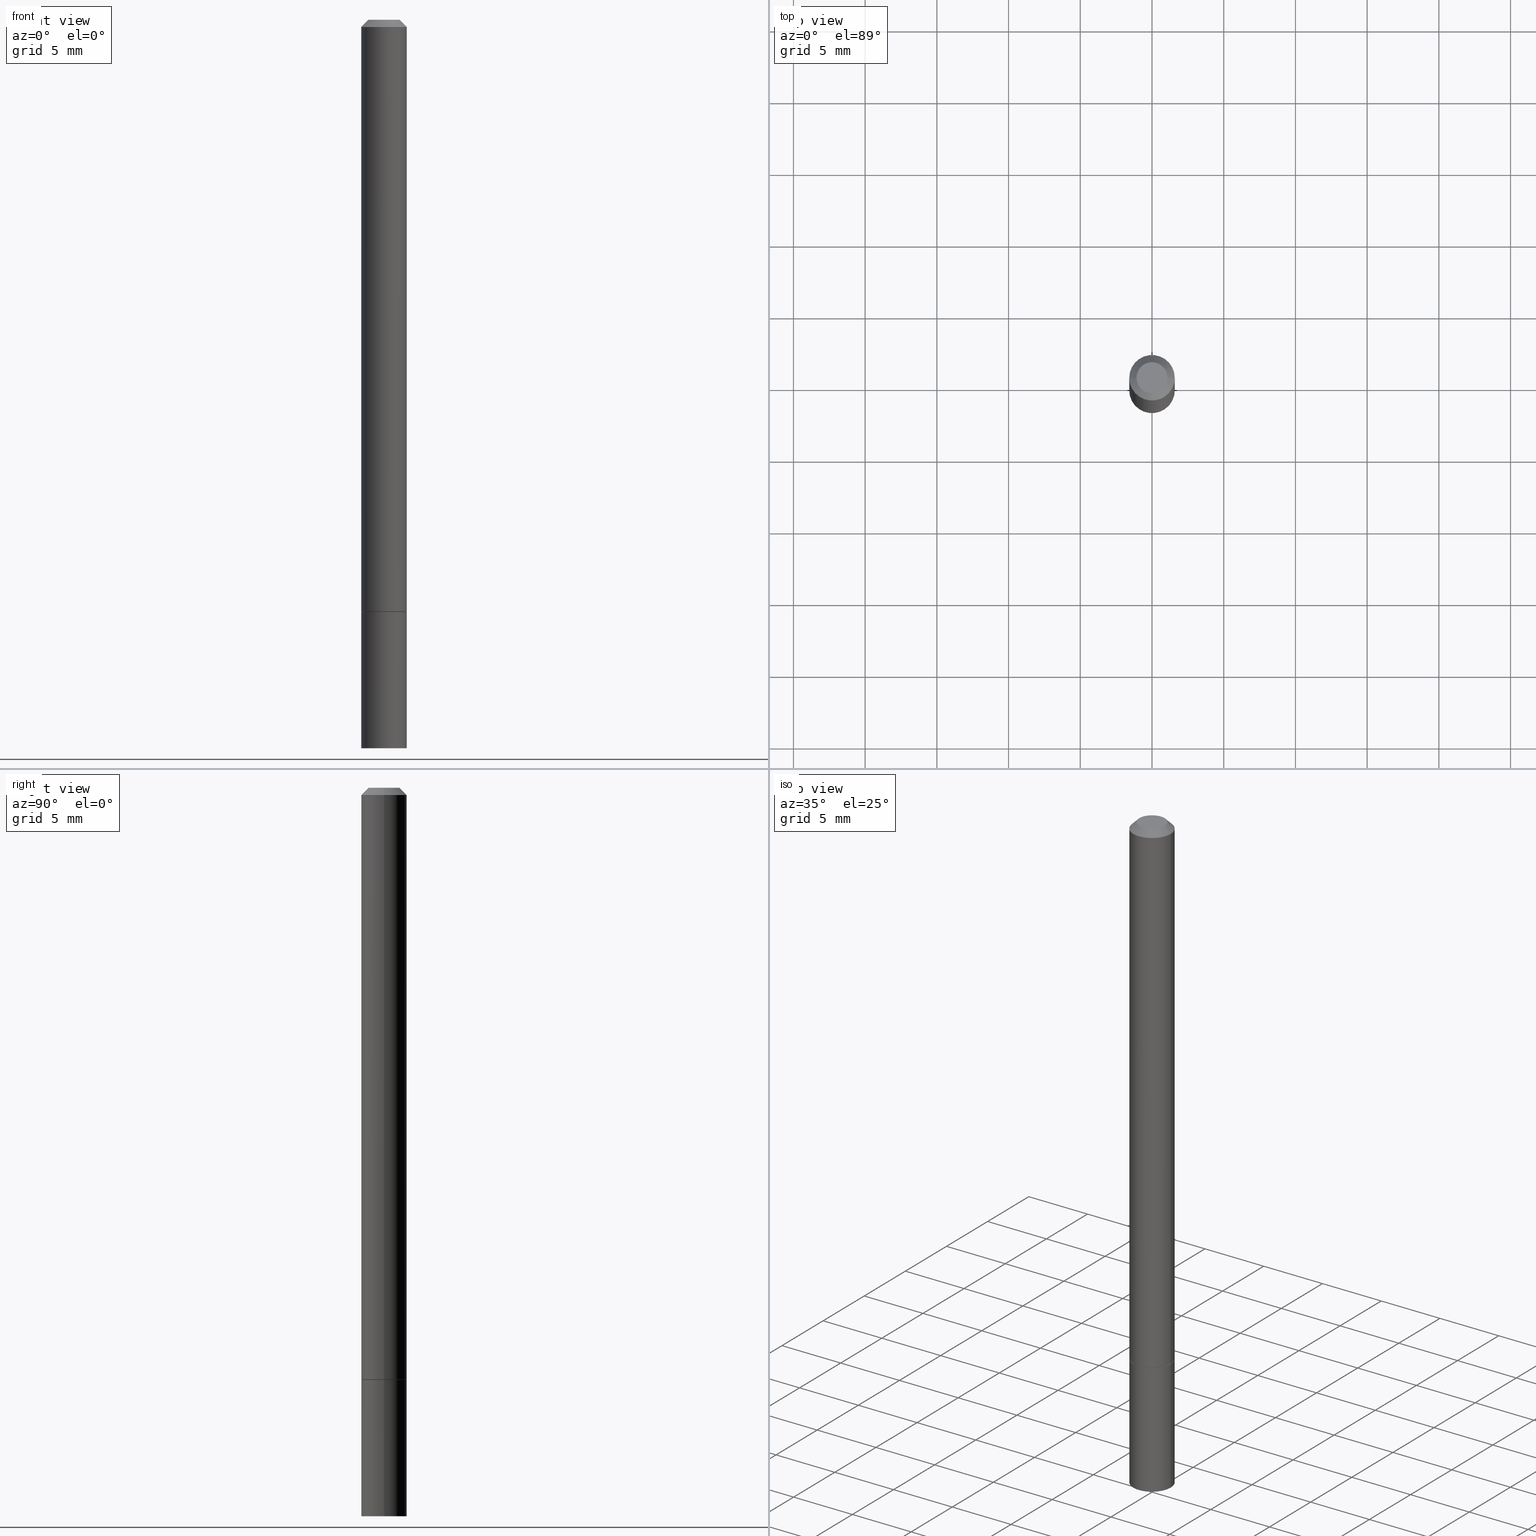
[diagram: canonical four-view strip — front | top / right | iso, engineering-drawing reading convention]
A machine part, canonical four-view strip (front | top / right | iso — engineering-drawing reading convention). The complete STEP part file that produces these views, byte-faithful:
ISO-10303-21;
HEADER;
FILE_DESCRIPTION (( 'STEP AP203' ),
    '1' );
FILE_NAME ('37397.STEP',
    '2024-02-27T21:27:54',
    ( '' ),
    ( '' ),
    'SwSTEP 2.0',
    'SolidWorks 2023',
    '' );
FILE_SCHEMA (( 'CONFIG_CONTROL_DESIGN' ));
ENDSEC;

DATA;
#1 = DATE_AND_TIME ( #290, #64 ) ;
#2 = CARTESIAN_POINT ( 'NONE',  ( 0.06150000000000001299, -6.103109380297817079E-15, -1.625000000000000000 ) ) ;
#3 =( NAMED_UNIT ( * ) PLANE_ANGLE_UNIT ( ) SI_UNIT ( $, .RADIAN. ) );
#4 = EDGE_CURVE ( 'NONE', #291, #338, #232, .T. ) ;
#5 = EDGE_LOOP ( 'NONE', ( #328, #31, #238, #210 ) ) ;
#6 = ORIENTED_EDGE ( 'NONE', *, *, #14, .T. ) ;
#7 = CARTESIAN_POINT ( 'NONE',  ( 3.973886810050846970E-29, -5.673657175620112213E-15, -1.625000000000000000 ) ) ;
#8 = CARTESIAN_POINT ( 'NONE',  ( 3.971441341244661927E-29, -5.670165694281268417E-15, -1.623999999999999888 ) ) ;
#9 = DIRECTION ( 'NONE',  ( -2.445468806185136597E-29, 3.491481338843145583E-15, 1.000000000000000000 ) ) ;
#10 = VECTOR ( 'NONE', #48, 39.37007874015748143 ) ;
#11 = EDGE_CURVE ( 'NONE', #184, #65, #170, .T. ) ;
#12 = DATE_TIME_ROLE ( 'creation_date' ) ;
#13 = CALENDAR_DATE ( 2024, 27, 2 ) ;
#14 = EDGE_CURVE ( 'NONE', #155, #107, #299, .T. ) ;
#15 = AXIS2_PLACEMENT_3D ( 'NONE', #243, #9, #121 ) ;
#16 = EDGE_LOOP ( 'NONE', ( #355, #179, #129, #6 ) ) ;
#17 = CARTESIAN_POINT ( 'NONE',  ( -0.06249999999999981265, 3.666055405785273851E-16, -0.02000000000000000736 ) ) ;
#18 = DIRECTION ( 'NONE',  ( -2.445468806185136597E-29, 3.491481338843145583E-15, 1.000000000000000000 ) ) ;
#19 = CIRCLE ( 'NONE', #217, 0.04249999999999988509 ) ;
#20 = ORIENTED_EDGE ( 'NONE', *, *, #24, .T. ) ;
#21 = DIRECTION ( 'NONE',  ( -1.000000000000000000, 6.982962677686265922E-15, -4.876176775795935793E-29 ) ) ;
#22 = ORIENTED_EDGE ( 'NONE', *, *, #339, .T. ) ;
#23 = DIRECTION ( 'NONE',  ( 1.000000000000000000, -6.982962677686260400E-15, 0.000000000000000000 ) ) ;
#24 = EDGE_CURVE ( 'NONE', #36, #74, #305, .T. ) ;
#25 = DIRECTION ( 'NONE',  ( 1.000000000000000000, -6.982962677686267499E-15, 4.876176775795935793E-29 ) ) ;
#26 = CONICAL_SURFACE ( 'NONE', #366, 0.06150000000000001299, 0.7853981633974141952 ) ;
#27 = VECTOR ( 'NONE', #327, 39.37007874015748854 ) ;
#28 = AXIS2_PLACEMENT_3D ( 'NONE', #154, #49, #270 ) ;
#29 = DIRECTION ( 'NONE',  ( -1.000000000000000000, 6.982962677686265922E-15, -4.876176775795935793E-29 ) ) ;
#30 = FACE_OUTER_BOUND ( 'NONE', #342, .T. ) ;
#31 = ORIENTED_EDGE ( 'NONE', *, *, #235, .T. ) ;
#32 =( LENGTH_UNIT ( ) NAMED_UNIT ( * ) SI_UNIT ( $, .METRE. ) );
#33 = ORIENTED_EDGE ( 'NONE', *, *, #140, .F. ) ;
#34 = CIRCLE ( 'NONE', #130, 0.04249999999999988509 ) ;
#35 = CC_DESIGN_APPROVAL ( #222, ( #301 ) ) ;
#36 = VERTEX_POINT ( 'NONE', #147 ) ;
#37 =( NAMED_UNIT ( * ) SI_UNIT ( $, .STERADIAN. ) SOLID_ANGLE_UNIT ( ) );
#38 = ORIENTED_EDGE ( 'NONE', *, *, #54, .T. ) ;
#39 = PERSON_AND_ORGANIZATION ( #219, #186 ) ;
#40 = AXIS2_PLACEMENT_3D ( 'NONE', #256, #319, #115 ) ;
#41 = EDGE_LOOP ( 'NONE', ( #118, #127, #92, #234 ) ) ;
#42 = COORDINATED_UNIVERSAL_TIME_OFFSET ( 5, 0, .BEHIND. ) ;
#43 = VECTOR ( 'NONE', #86, 39.37007874015748143 ) ;
#44 = VECTOR ( 'NONE', #145, 39.37007874015748143 ) ;
#45 = AXIS2_PLACEMENT_3D ( 'NONE', #283, #189, #143 ) ;
#46 = DIRECTION ( 'NONE',  ( -2.445468806185136597E-29, 3.491481338843145583E-15, 1.000000000000000000 ) ) ;
#47 = ORIENTED_EDGE ( 'NONE', *, *, #60, .F. ) ;
#48 = DIRECTION ( 'NONE',  ( -2.445468806185136877E-29, 3.491481338843145188E-15, 1.000000000000000000 ) ) ;
#49 = DIRECTION ( 'NONE',  ( -2.445468806185136597E-29, 3.491481338843145583E-15, 1.000000000000000000 ) ) ;
#50 = CARTESIAN_POINT ( 'NONE',  ( -0.06249999999999981265, 3.666055405785273851E-16, -0.02000000000000000736 ) ) ;
#51 = CARTESIAN_POINT ( 'NONE',  ( 3.973886810050846970E-29, -5.673657175620112213E-15, -1.625000000000000000 ) ) ;
#52 = DIRECTION ( 'NONE',  ( -2.438088387897960049E-29, 3.491481338843145188E-15, 1.000000000000000000 ) ) ;
#53 = APPROVAL ( #173, 'UNSPECIFIED' ) ;
#54 = EDGE_CURVE ( 'NONE', #260, #184, #185, .T. ) ;
#55 = DIRECTION ( 'NONE',  ( 1.000000000000000000, -6.982962677686261189E-15, 0.000000000000000000 ) ) ;
#56 = DIRECTION ( 'NONE',  ( 1.000000000000000000, 0.000000000000000000, 0.000000000000000000 ) ) ;
#57 = PRODUCT_DEFINITION_SHAPE ( 'NONE', 'NONE',  #301 ) ;
#58 = VERTEX_POINT ( 'NONE', #82 ) ;
#59 = DIRECTION ( 'NONE',  ( 2.438088387897960049E-29, -3.491481338843145188E-15, -1.000000000000000000 ) ) ;
#60 = EDGE_CURVE ( 'NONE', #58, #155, #307, .T. ) ;
#61 = ORIENTED_EDGE ( 'NONE', *, *, #125, .T. ) ;
#62 = CARTESIAN_POINT ( 'NONE',  ( 0.06249999999999991673, -4.364351673553910778E-16, 3.047610484872455667E-30 ) ) ;
#63 = CIRCLE ( 'NONE', #227, 0.06250000000000001388 ) ;
#64 = LOCAL_TIME ( 16, 27, 54.00000000000000000, #255 ) ;
#65 = VERTEX_POINT ( 'NONE', #75 ) ;
#66 = DIRECTION ( 'NONE',  ( -2.445468806185136597E-29, 3.491481338843145583E-15, 1.000000000000000000 ) ) ;
#67 = APPROVAL_ROLE ( '' ) ;
#68 = PRODUCT_RELATED_PRODUCT_CATEGORY ( 'detail', '', ( #259 ) ) ;
#69 = DIRECTION ( 'NONE',  ( 2.445468806185136597E-29, -3.491481338843145583E-15, -1.000000000000000000 ) ) ;
#70 = AXIS2_PLACEMENT_3D ( 'NONE', #110, #79, #108 ) ;
#71 =( GEOMETRIC_REPRESENTATION_CONTEXT ( 3 ) GLOBAL_UNCERTAINTY_ASSIGNED_CONTEXT ( ( #258 ) ) GLOBAL_UNIT_ASSIGNED_CONTEXT ( ( #317, #3, #37 ) ) REPRESENTATION_CONTEXT ( 'NONE', 'WORKASPACE' ) );
#72 = PERSON_AND_ORGANIZATION ( #219, #186 ) ;
#73 = MANIFOLD_SOLID_BREP ( 'Body-Move/Copy2[1]', #162 ) ;
#74 = VERTEX_POINT ( 'NONE', #340 ) ;
#75 = CARTESIAN_POINT ( 'NONE',  ( 0.06250000000000001388, -6.110092342975503093E-15, -1.625000000000000000 ) ) ;
#76 = LOCAL_TIME ( 16, 27, 54.00000000000000000, #122 ) ;
#77 = FACE_OUTER_BOUND ( 'NONE', #318, .T. ) ;
#78 = ADVANCED_FACE ( 'NONE', ( #197 ), #285, .T. ) ;
#79 = DIRECTION ( 'NONE',  ( -2.445468806185136597E-29, 3.491481338843145583E-15, 1.000000000000000000 ) ) ;
#80 = ORIENTED_EDGE ( 'NONE', *, *, #204, .T. ) ;
#81 = CARTESIAN_POINT ( 'NONE',  ( -0.06150000000000001299, -5.231374938779427414E-15, -1.625000000000000000 ) ) ;
#82 = CARTESIAN_POINT ( 'NONE',  ( -0.04249999999999988509, 3.316907271900964263E-16, -2.134256245050425658E-17 ) ) ;
#83 = DIRECTION ( 'NONE',  ( -2.445468806185136597E-29, 3.491481338843145583E-15, 1.000000000000000000 ) ) ;
#84 = AXIS2_PLACEMENT_3D ( 'NONE', #94, #91, #166 ) ;
#85 = FACE_OUTER_BOUND ( 'NONE', #157, .T. ) ;
#86 = DIRECTION ( 'NONE',  ( 0.7071067811865464625, -7.319954787623252890E-15, -0.7071067811865486830 ) ) ;
#87 = AXIS2_PLACEMENT_3D ( 'NONE', #240, #131, #218 ) ;
#88 = ORIENTED_EDGE ( 'NONE', *, *, #4, .F. ) ;
#89 = CARTESIAN_POINT ( 'NONE',  ( 0.000000000000000000, 0.000000000000000000, 0.000000000000000000 ) ) ;
#90 = ORIENTED_EDGE ( 'NONE', *, *, #335, .F. ) ;
#91 = DIRECTION ( 'NONE',  ( -2.445468806185136597E-29, 3.491481338843145583E-15, 1.000000000000000000 ) ) ;
#92 = ORIENTED_EDGE ( 'NONE', *, *, #212, .T. ) ;
#93 = EDGE_CURVE ( 'NONE', #36, #107, #316, .T. ) ;
#94 = CARTESIAN_POINT ( 'NONE',  ( 0.000000000000000000, 0.000000000000000000, 0.000000000000000000 ) ) ;
#95 = APPROVAL_PERSON_ORGANIZATION ( #39, #53, #124 ) ;
#96 = ORIENTED_EDGE ( 'NONE', *, *, #140, .T. ) ;
#97 = CC_DESIGN_SECURITY_CLASSIFICATION ( #272, ( #334 ) ) ;
#98 = CC_DESIGN_PERSON_AND_ORGANIZATION_ASSIGNMENT ( #321, #323, ( #334 ) ) ;
#99 = PERSON_AND_ORGANIZATION_ROLE ( 'classification_officer' ) ;
#100 = LINE ( 'NONE', #274, #10 ) ;
#101 = CC_DESIGN_PERSON_AND_ORGANIZATION_ASSIGNMENT ( #341, #114, ( #259 ) ) ;
#102 = ORIENTED_EDGE ( 'NONE', *, *, #181, .T. ) ;
#103 = ORIENTED_EDGE ( 'NONE', *, *, #339, .F. ) ;
#104 = VECTOR ( 'NONE', #111, 39.37007874015748854 ) ;
#105 = CC_DESIGN_APPROVAL ( #165, ( #272 ) ) ;
#106 = CARTESIAN_POINT ( 'NONE',  ( 3.971441341244661927E-29, -5.670165694281268417E-15, -1.623999999999999888 ) ) ;
#107 = VERTEX_POINT ( 'NONE', #289 ) ;
#108 = DIRECTION ( 'NONE',  ( 1.000000000000000000, -6.982962677686260400E-15, 0.000000000000000000 ) ) ;
#109 = VERTEX_POINT ( 'NONE', #150 ) ;
#110 = CARTESIAN_POINT ( 'NONE',  ( 3.973886810050846970E-29, -5.673657175620112213E-15, -1.625000000000000000 ) ) ;
#111 = DIRECTION ( 'NONE',  ( -0.7071067811865232589, 7.493145998870265808E-15, 0.7071067811865715536 ) ) ;
#112 = CONICAL_SURFACE ( 'NONE', #87, 0.06150000000000001299, 0.7853981633974141952 ) ;
#113 = LOCAL_TIME ( 16, 27, 54.00000000000000000, #345 ) ;
#114 = PERSON_AND_ORGANIZATION_ROLE ( 'design_owner' ) ;
#115 = DIRECTION ( 'NONE',  ( 1.000000000000000000, -6.982962677686266711E-15, 0.000000000000000000 ) ) ;
#116 = CARTESIAN_POINT ( 'NONE',  ( 4.364351673554406281E-16, 0.06249999999999303335, -2.000000000000000444 ) ) ;
#117 = VECTOR ( 'NONE', #199, 39.37007874015748143 ) ;
#118 = ORIENTED_EDGE ( 'NONE', *, *, #202, .F. ) ;
#119 = ORIENTED_EDGE ( 'NONE', *, *, #335, .T. ) ;
#120 = DIRECTION ( 'NONE',  ( 2.438088387897960049E-29, -3.491481338843145188E-15, -1.000000000000000000 ) ) ;
#121 = DIRECTION ( 'NONE',  ( 1.000000000000000000, -6.982962677686261189E-15, 0.000000000000000000 ) ) ;
#122 = COORDINATED_UNIVERSAL_TIME_OFFSET ( 5, 0, .BEHIND. ) ;
#123 = APPROVAL_DATE_TIME ( #149, #53 ) ;
#124 = APPROVAL_ROLE ( '' ) ;
#125 = EDGE_CURVE ( 'NONE', #251, #58, #34, .T. ) ;
#126 = AXIS2_PLACEMENT_3D ( 'NONE', #330, #46, #25 ) ;
#127 = ORIENTED_EDGE ( 'NONE', *, *, #4, .T. ) ;
#128 = DIRECTION ( 'NONE',  ( 1.000000000000000000, -6.982962677686267499E-15, 4.879498284297456879E-29 ) ) ;
#129 = ORIENTED_EDGE ( 'NONE', *, *, #60, .T. ) ;
#130 = AXIS2_PLACEMENT_3D ( 'NONE', #176, #66, #230 ) ;
#131 = DIRECTION ( 'NONE',  ( -2.445468806185136597E-29, 3.491481338843145583E-15, 1.000000000000000000 ) ) ;
#132 = ORIENTED_EDGE ( 'NONE', *, *, #125, .F. ) ;
#133 = PLANE ( 'NONE',  #346 ) ;
#134 = DIRECTION ( 'NONE',  ( -2.445468806185136597E-29, 3.491481338843145583E-15, 1.000000000000000000 ) ) ;
#135 = FACE_OUTER_BOUND ( 'NONE', #254, .T. ) ;
#136 = DIRECTION ( 'NONE',  ( 1.000000000000000000, -6.982962677686261189E-15, 0.000000000000000000 ) ) ;
#137 = VECTOR ( 'NONE', #231, 39.37007874015748143 ) ;
#138 = ADVANCED_FACE ( 'NONE', ( #174 ), #194, .F. ) ;
#139 = LINE ( 'NONE', #281, #43 ) ;
#140 = EDGE_CURVE ( 'NONE', #107, #155, #178, .T. ) ;
#141 = ORIENTED_EDGE ( 'NONE', *, *, #314, .F. ) ;
#142 = EDGE_LOOP ( 'NONE', ( #192, #196, #275, #215 ) ) ;
#143 = DIRECTION ( 'NONE',  ( -1.000000000000000000, 6.982962677686266711E-15, 0.000000000000000000 ) ) ;
#144 = CC_DESIGN_DATE_AND_TIME_ASSIGNMENT ( #264, #12, ( #301 ) ) ;
#145 = DIRECTION ( 'NONE',  ( -2.445468806185136877E-29, 3.491481338843145188E-15, 1.000000000000000000 ) ) ;
#146 = APPROVAL_DATE_TIME ( #292, #165 ) ;
#147 = CARTESIAN_POINT ( 'NONE',  ( 0.06250000000000001388, -6.106600861636660086E-15, -1.623999999999999888 ) ) ;
#148 = CARTESIAN_POINT ( 'NONE',  ( 4.890937612370274910E-31, -6.982962677686295307E-17, -0.02000000000000000736 ) ) ;
#149 = DATE_AND_TIME ( #13, #76 ) ;
#150 = CARTESIAN_POINT ( 'NONE',  ( -0.06250000000000001388, -5.884220716803138678E-15, -1.625000000000000000 ) ) ;
#151 = AXIS2_PLACEMENT_3D ( 'NONE', #209, #326, #304 ) ;
#152 = EDGE_CURVE ( 'NONE', #74, #155, #100, .T. ) ;
#153 = CALENDAR_DATE ( 2024, 27, 2 ) ;
#154 = CARTESIAN_POINT ( 'NONE',  ( 0.000000000000000000, 0.000000000000000000, 0.000000000000000000 ) ) ;
#155 = VERTEX_POINT ( 'NONE', #17 ) ;
#156 = LINE ( 'NONE', #187, #104 ) ;
#157 = EDGE_LOOP ( 'NONE', ( #90, #213 ) ) ;
#158 = DIRECTION ( 'NONE',  ( 1.000000000000000000, -6.982962677686261189E-15, 0.000000000000000000 ) ) ;
#159 = ORIENTED_EDGE ( 'NONE', *, *, #11, .F. ) ;
#160 = FACE_OUTER_BOUND ( 'NONE', #41, .T. ) ;
#161 = CARTESIAN_POINT ( 'NONE',  ( 2.967759138016655168E-16, 0.04249999999999988509, -1.590592381260843181E-16 ) ) ;
#162 = CLOSED_SHELL ( 'NONE', ( #280, #310, #138, #302 ) ) ;
#163 = AXIS2_PLACEMENT_3D ( 'NONE', #7, #313, #55 ) ;
#164 = LINE ( 'NONE', #195, #117 ) ;
#165 = APPROVAL ( #296, 'UNSPECIFIED' ) ;
#166 = DIRECTION ( 'NONE',  ( 1.000000000000000000, -6.982962677686266711E-15, 4.876176775795935793E-29 ) ) ;
#167 = CARTESIAN_POINT ( 'NONE',  ( 3.973886810050846970E-29, -5.673657175620112213E-15, -1.625000000000000000 ) ) ;
#168 = PERSON_AND_ORGANIZATION ( #219, #186 ) ;
#169 = AXIS2_PLACEMENT_3D ( 'NONE', #242, #83, #136 ) ;
#170 = LINE ( 'NONE', #331, #44 ) ;
#171 = APPLICATION_PROTOCOL_DEFINITION ( 'international standard', 'config_control_design', 1994, #239 ) ;
#172 = DIRECTION ( 'NONE',  ( 1.000000000000000000, -6.982962677686261189E-15, 0.000000000000000000 ) ) ;
#173 = APPROVAL_STATUS ( 'not_yet_approved' ) ;
#174 = FACE_OUTER_BOUND ( 'NONE', #266, .T. ) ;
#175 = VECTOR ( 'NONE', #320, 39.37007874015748143 ) ;
#176 = CARTESIAN_POINT ( 'NONE',  ( 5.219257071676098903E-46, -7.451715851902235727E-32, -2.134256245050205639E-17 ) ) ;
#177 = DATE_TIME_ROLE ( 'classification_date' ) ;
#178 = CIRCLE ( 'NONE', #278, 0.06249999999999981265 ) ;
#179 = ORIENTED_EDGE ( 'NONE', *, *, #204, .F. ) ;
#180 = CYLINDRICAL_SURFACE ( 'NONE', #28, 0.06250000000000001388 ) ;
#181 = EDGE_CURVE ( 'NONE', #65, #109, #333, .T. ) ;
#182 = CARTESIAN_POINT ( 'NONE',  ( -0.06250000000000001388, -5.884220716803138678E-15, -2.000000000000000000 ) ) ;
#183 = CYLINDRICAL_SURFACE ( 'NONE', #151, 0.06249999999999991673 ) ;
#184 = VERTEX_POINT ( 'NONE', #236 ) ;
#185 = CIRCLE ( 'NONE', #15, 0.06250000000000001388 ) ;
#186 = ORGANIZATION ( 'UNSPECIFIED', 'UNSPECIFIED', '' ) ;
#187 = CARTESIAN_POINT ( 'NONE',  ( -0.06150000000000001299, -5.236673393127650605E-15, -1.625000000000000000 ) ) ;
#188 = FACE_OUTER_BOUND ( 'NONE', #357, .T. ) ;
#189 = DIRECTION ( 'NONE',  ( 2.445468806185136597E-29, -3.491481338843145583E-15, -1.000000000000000000 ) ) ;
#190 = CC_DESIGN_PERSON_AND_ORGANIZATION_ASSIGNMENT ( #229, #99, ( #272 ) ) ;
#191 = DIRECTION ( 'NONE',  ( 1.000000000000000000, -6.982962677686261189E-15, 0.000000000000000000 ) ) ;
#192 = ORIENTED_EDGE ( 'NONE', *, *, #250, .T. ) ;
#193 = PLANE ( 'NONE',  #245 ) ;
#194 = PLANE ( 'NONE',  #344 ) ;
#195 = CARTESIAN_POINT ( 'NONE',  ( -0.06250000000000001388, 4.440892098500627148E-16, -3.074334431409317165E-30 ) ) ;
#196 = ORIENTED_EDGE ( 'NONE', *, *, #202, .T. ) ;
#197 = FACE_OUTER_BOUND ( 'NONE', #16, .T. ) ;
#198 = LOCAL_TIME ( 16, 27, 54.00000000000000000, #42 ) ;
#199 = DIRECTION ( 'NONE',  ( -2.445468806185136877E-29, 3.491481338843145188E-15, 1.000000000000000000 ) ) ;
#200 = DIRECTION ( 'NONE',  ( -2.445468806185136597E-29, 3.491481338843145583E-15, 1.000000000000000000 ) ) ;
#201 = SHAPE_DEFINITION_REPRESENTATION ( #57, #365 ) ;
#202 = EDGE_CURVE ( 'NONE', #291, #74, #156, .T. ) ;
#203 = DATE_AND_TIME ( #153, #113 ) ;
#204 = EDGE_CURVE ( 'NONE', #58, #251, #19, .T. ) ;
#205 = PERSON_AND_ORGANIZATION ( #219, #186 ) ;
#206 = CLOSED_SHELL ( 'NONE', ( #241, #349, #359, #78, #294, #269, #257, #247 ) ) ;
#207 = PERSON_AND_ORGANIZATION ( #219, #186 ) ;
#208 = CC_DESIGN_PERSON_AND_ORGANIZATION_ASSIGNMENT ( #205, #226, ( #301 ) ) ;
#209 = CARTESIAN_POINT ( 'NONE',  ( 0.000000000000000000, 0.000000000000000000, 0.000000000000000000 ) ) ;
#210 = ORIENTED_EDGE ( 'NONE', *, *, #14, .F. ) ;
#211 = CARTESIAN_POINT ( 'NONE',  ( 4.890937612370274910E-31, -6.982962677686295307E-17, -0.02000000000000000736 ) ) ;
#212 = EDGE_CURVE ( 'NONE', #338, #36, #358, .T. ) ;
#213 = ORIENTED_EDGE ( 'NONE', *, *, #54, .F. ) ;
#214 = CARTESIAN_POINT ( 'NONE',  ( 3.973886810050846970E-29, -5.673657175620112213E-15, -1.625000000000000000 ) ) ;
#215 = ORIENTED_EDGE ( 'NONE', *, *, #212, .F. ) ;
#216 = DIRECTION ( 'NONE',  ( 1.000000000000000000, -6.982962677686266711E-15, 0.000000000000000000 ) ) ;
#217 = AXIS2_PLACEMENT_3D ( 'NONE', #271, #351, #128 ) ;
#218 = DIRECTION ( 'NONE',  ( 1.000000000000000000, -6.982962677686260400E-15, 0.000000000000000000 ) ) ;
#219 = PERSON ( 'UNSPECIFIED', 'UNSPECIFIED', 'UNSPECIFIED', ('UNSPECIFIED'), ('UNSPECIFIED'), ('UNSPECIFIED') ) ;
#220 = FACE_OUTER_BOUND ( 'NONE', #268, .T. ) ;
#221 = APPLICATION_PROTOCOL_DEFINITION ( 'international standard', 'config_control_design', 1994, #347 ) ;
#222 = APPROVAL ( #286, 'UNSPECIFIED' ) ;
#223 = ORIENTED_EDGE ( 'NONE', *, *, #152, .T. ) ;
#224 = CARTESIAN_POINT ( 'NONE',  ( 4.890937612370273194E-29, -6.982962677686291165E-15, -2.000000000000000000 ) ) ;
#225 = ORIENTED_EDGE ( 'NONE', *, *, #250, .F. ) ;
#226 = PERSON_AND_ORGANIZATION_ROLE ( 'creator' ) ;
#227 = AXIS2_PLACEMENT_3D ( 'NONE', #106, #18, #158 ) ;
#228 = CALENDAR_DATE ( 2024, 27, 2 ) ;
#229 = PERSON_AND_ORGANIZATION ( #219, #186 ) ;
#230 = DIRECTION ( 'NONE',  ( 1.000000000000000000, -6.982962677686267499E-15, 4.879498284297456879E-29 ) ) ;
#231 = DIRECTION ( 'NONE',  ( -0.7071067811865464625, 2.468850131082245228E-15, -0.7071067811865486830 ) ) ;
#232 = CIRCLE ( 'NONE', #353, 0.06150000000000001299 ) ;
#233 = APPROVAL_PERSON_ORGANIZATION ( #72, #165, #67 ) ;
#234 = ORIENTED_EDGE ( 'NONE', *, *, #235, .F. ) ;
#235 = EDGE_CURVE ( 'NONE', #74, #36, #63, .T. ) ;
#236 = CARTESIAN_POINT ( 'NONE',  ( 0.06250000000000001388, -7.419397845041682046E-15, -2.000000000000000000 ) ) ;
#237 = AXIS2_PLACEMENT_3D ( 'NONE', #148, #69, #261 ) ;
#238 = ORIENTED_EDGE ( 'NONE', *, *, #93, .T. ) ;
#239 = APPLICATION_CONTEXT ( 'configuration controlled 3d designs of mechanical parts and assemblies' ) ;
#240 = CARTESIAN_POINT ( 'NONE',  ( 3.973886810050846970E-29, -5.673657175620112213E-15, -1.625000000000000000 ) ) ;
#241 = ADVANCED_FACE ( 'NONE', ( #309 ), #112, .T. ) ;
#242 = CARTESIAN_POINT ( 'NONE',  ( 3.973886810050846970E-29, -5.673657175620112213E-15, -1.625000000000000000 ) ) ;
#243 = CARTESIAN_POINT ( 'NONE',  ( 4.890937612370273194E-29, -6.982962677686291165E-15, -2.000000000000000000 ) ) ;
#244 = CYLINDRICAL_SURFACE ( 'NONE', #126, 0.06250000000000001388 ) ;
#245 = AXIS2_PLACEMENT_3D ( 'NONE', #116, #120, #29 ) ;
#246 = APPROVAL_ROLE ( '' ) ;
#247 = ADVANCED_FACE ( 'NONE', ( #135 ), #361, .F. ) ;
#248 = CYLINDRICAL_SURFACE ( 'NONE', #84, 0.06249999999999991673 ) ;
#249 = LENGTH_MEASURE_WITH_UNIT ( LENGTH_MEASURE( 0.02539999999999999897 ), #32 );
#250 = EDGE_CURVE ( 'NONE', #338, #291, #295, .T. ) ;
#251 = VERTEX_POINT ( 'NONE', #362 ) ;
#252 = MECHANICAL_CONTEXT ( 'NONE', #239, 'mechanical' ) ;
#253 = CONICAL_SURFACE ( 'NONE', #45, 0.06249999999999981265, 0.7853981633974467247 ) ;
#254 = EDGE_LOOP ( 'NONE', ( #80, #61 ) ) ;
#255 = COORDINATED_UNIVERSAL_TIME_OFFSET ( 5, 0, .BEHIND. ) ;
#256 = CARTESIAN_POINT ( 'NONE',  ( 4.890937612370274910E-31, -6.982962677686295307E-17, -0.02000000000000000736 ) ) ;
#257 = ADVANCED_FACE ( 'NONE', ( #188 ), #133, .F. ) ;
#258 = UNCERTAINTY_MEASURE_WITH_UNIT (LENGTH_MEASURE( 1.000000000000000082E-05 ), #317, 'distance_accuracy_value', 'NONE');
#259 = PRODUCT ( '37397', '37397', '', ( #252 ) ) ;
#260 = VERTEX_POINT ( 'NONE', #182 ) ;
#261 = DIRECTION ( 'NONE',  ( -1.000000000000000000, 6.982962677686266711E-15, 0.000000000000000000 ) ) ;
#262 = SECURITY_CLASSIFICATION_LEVEL ( 'unclassified' ) ;
#263 = AXIS2_PLACEMENT_3D ( 'NONE', #8, #134, #172 ) ;
#264 = DATE_AND_TIME ( #228, #267 ) ;
#265 = DIMENSIONAL_EXPONENTS ( 1.000000000000000000, 0.000000000000000000, 0.000000000000000000, 0.000000000000000000, 0.000000000000000000, 0.000000000000000000, 0.000000000000000000 ) ;
#266 = EDGE_LOOP ( 'NONE', ( #102, #22 ) ) ;
#267 = LOCAL_TIME ( 16, 27, 54.00000000000000000, #352 ) ;
#268 = EDGE_LOOP ( 'NONE', ( #132, #288, #96, #47 ) ) ;
#269 = ADVANCED_FACE ( 'NONE', ( #160 ), #26, .T. ) ;
#270 = DIRECTION ( 'NONE',  ( 1.000000000000000000, -6.982962677686267499E-15, 4.876176775795935793E-29 ) ) ;
#271 = CARTESIAN_POINT ( 'NONE',  ( 5.219257071676098903E-46, -7.451715851902235727E-32, -2.134256245050205639E-17 ) ) ;
#272 = SECURITY_CLASSIFICATION ( '', '', #262 ) ;
#273 = ORIENTED_EDGE ( 'NONE', *, *, #314, .T. ) ;
#274 = CARTESIAN_POINT ( 'NONE',  ( -0.06249999999999991673, 4.440892098500620245E-16, -3.074334431409311910E-30 ) ) ;
#275 = ORIENTED_EDGE ( 'NONE', *, *, #24, .F. ) ;
#276 = DIRECTION ( 'NONE',  ( -2.445468806185136597E-29, 3.491481338843145583E-15, 1.000000000000000000 ) ) ;
#277 = DIRECTION ( 'NONE',  ( 1.000000000000000000, -6.982962677686265922E-15, 4.876176775795935793E-29 ) ) ;
#278 = AXIS2_PLACEMENT_3D ( 'NONE', #211, #303, #216 ) ;
#279 = DIRECTION ( 'NONE',  ( 0.000000000000000000, 0.000000000000000000, 1.000000000000000000 ) ) ;
#280 = ADVANCED_FACE ( 'NONE', ( #300 ), #244, .T. ) ;
#281 = CARTESIAN_POINT ( 'NONE',  ( 0.06249999999999981265, -4.986107516375823445E-16, -0.02000000000000000736 ) ) ;
#282 = ORIENTED_EDGE ( 'NONE', *, *, #93, .F. ) ;
#283 = CARTESIAN_POINT ( 'NONE',  ( 4.890937612370274910E-31, -6.982962677686295307E-17, -0.02000000000000000736 ) ) ;
#284 = DIRECTION ( 'NONE',  ( 1.000000000000000000, -6.982962677686260400E-15, 0.000000000000000000 ) ) ;
#285 = CONICAL_SURFACE ( 'NONE', #237, 0.06249999999999981265, 0.7853981633974467247 ) ;
#286 = APPROVAL_STATUS ( 'not_yet_approved' ) ;
#287 = APPROVAL_PERSON_ORGANIZATION ( #168, #222, #246 ) ;
#288 = ORIENTED_EDGE ( 'NONE', *, *, #322, .T. ) ;
#289 = CARTESIAN_POINT ( 'NONE',  ( 0.06249999999999981265, -4.986107516375823445E-16, -0.02000000000000000736 ) ) ;
#290 = CALENDAR_DATE ( 2024, 27, 2 ) ;
#291 = VERTEX_POINT ( 'NONE', #81 ) ;
#292 = DATE_AND_TIME ( #350, #198 ) ;
#293 = CARTESIAN_POINT ( 'NONE',  ( 4.364351673554314576E-16, 0.06249999999999433786, -1.625000000000000222 ) ) ;
#294 = ADVANCED_FACE ( 'NONE', ( #364 ), #183, .T. ) ;
#295 = CIRCLE ( 'NONE', #70, 0.06150000000000001299 ) ;
#296 = APPROVAL_STATUS ( 'not_yet_approved' ) ;
#297 = CC_DESIGN_DATE_AND_TIME_ASSIGNMENT ( #203, #177, ( #272 ) ) ;
#298 = CIRCLE ( 'NONE', #312, 0.06250000000000001388 ) ;
#299 = CIRCLE ( 'NONE', #40, 0.06249999999999981265 ) ;
#300 = FACE_OUTER_BOUND ( 'NONE', #360, .T. ) ;
#301 = PRODUCT_DEFINITION ( 'UNKNOWN', '', #334, #329 ) ;
#302 = ADVANCED_FACE ( 'NONE', ( #77 ), #180, .T. ) ;
#303 = DIRECTION ( 'NONE',  ( -2.445468806185136597E-29, 3.491481338843145583E-15, 1.000000000000000000 ) ) ;
#304 = DIRECTION ( 'NONE',  ( 1.000000000000000000, -6.982962677686266711E-15, 4.876176775795935793E-29 ) ) ;
#305 = CIRCLE ( 'NONE', #263, 0.06250000000000001388 ) ;
#306 = CIRCLE ( 'NONE', #163, 0.06250000000000001388 ) ;
#307 = LINE ( 'NONE', #50, #137 ) ;
#308 = CARTESIAN_POINT ( 'NONE',  ( 0.06150000000000001299, -6.103109380297817079E-15, -1.625000000000000000 ) ) ;
#309 = FACE_OUTER_BOUND ( 'NONE', #142, .T. ) ;
#310 = ADVANCED_FACE ( 'NONE', ( #85 ), #193, .T. ) ;
#311 = AXIS2_PLACEMENT_3D ( 'NONE', #161, #336, #332 ) ;
#312 = AXIS2_PLACEMENT_3D ( 'NONE', #224, #343, #191 ) ;
#313 = DIRECTION ( 'NONE',  ( -2.445468806185136597E-29, 3.491481338843145583E-15, 1.000000000000000000 ) ) ;
#314 = EDGE_CURVE ( 'NONE', #260, #109, #164, .T. ) ;
#315 = ORIENTED_EDGE ( 'NONE', *, *, #11, .T. ) ;
#316 = LINE ( 'NONE', #62, #175 ) ;
#317 =( CONVERSION_BASED_UNIT ( 'INCH', #249 ) LENGTH_UNIT ( ) NAMED_UNIT ( #265 ) );
#318 = EDGE_LOOP ( 'NONE', ( #141, #38, #315, #103 ) ) ;
#319 = DIRECTION ( 'NONE',  ( -2.445468806185136597E-29, 3.491481338843145583E-15, 1.000000000000000000 ) ) ;
#320 = DIRECTION ( 'NONE',  ( -2.445468806185136877E-29, 3.491481338843145188E-15, 1.000000000000000000 ) ) ;
#321 = PERSON_AND_ORGANIZATION ( #219, #186 ) ;
#322 = EDGE_CURVE ( 'NONE', #251, #107, #139, .T. ) ;
#323 = PERSON_AND_ORGANIZATION_ROLE ( 'design_supplier' ) ;
#324 = CC_DESIGN_APPROVAL ( #53, ( #334 ) ) ;
#325 = MANIFOLD_SOLID_BREP ( 'Body-Move/Copy2[2]', #206 ) ;
#326 = DIRECTION ( 'NONE',  ( -2.445468806185136597E-29, 3.491481338843145583E-15, 1.000000000000000000 ) ) ;
#327 = DIRECTION ( 'NONE',  ( 0.7071067811865232589, -2.468850131082003836E-15, 0.7071067811865715536 ) ) ;
#328 = ORIENTED_EDGE ( 'NONE', *, *, #152, .F. ) ;
#329 = DESIGN_CONTEXT ( 'detailed design', #347, 'design' ) ;
#330 = CARTESIAN_POINT ( 'NONE',  ( 0.000000000000000000, 0.000000000000000000, 0.000000000000000000 ) ) ;
#331 = CARTESIAN_POINT ( 'NONE',  ( 0.06250000000000001388, -4.364351673553918173E-16, 3.047610484872460571E-30 ) ) ;
#332 = DIRECTION ( 'NONE',  ( -1.000000000000000000, 6.982962677686265922E-15, -4.876176775795935793E-29 ) ) ;
#333 = CIRCLE ( 'NONE', #169, 0.06250000000000001388 ) ;
#334 = PRODUCT_DEFINITION_FORMATION_WITH_SPECIFIED_SOURCE ( 'ANY', '', #259, .NOT_KNOWN. ) ;
#335 = EDGE_CURVE ( 'NONE', #184, #260, #298, .T. ) ;
#336 = DIRECTION ( 'NONE',  ( 2.438088387897960049E-29, -3.491481338843145188E-15, -1.000000000000000000 ) ) ;
#337 = APPROVAL_DATE_TIME ( #1, #222 ) ;
#338 = VERTEX_POINT ( 'NONE', #2 ) ;
#339 = EDGE_CURVE ( 'NONE', #109, #65, #306, .T. ) ;
#340 = CARTESIAN_POINT ( 'NONE',  ( -0.06250000000000001388, -2.425908450678998508E-15, -1.623999999999999888 ) ) ;
#341 = PERSON_AND_ORGANIZATION ( #219, #186 ) ;
#342 = EDGE_LOOP ( 'NONE', ( #20, #223, #33, #282 ) ) ;
#343 = DIRECTION ( 'NONE',  ( -2.445468806185136597E-29, 3.491481338843145583E-15, 1.000000000000000000 ) ) ;
#344 = AXIS2_PLACEMENT_3D ( 'NONE', #293, #59, #21 ) ;
#345 = COORDINATED_UNIVERSAL_TIME_OFFSET ( 5, 0, .BEHIND. ) ;
#346 = AXIS2_PLACEMENT_3D ( 'NONE', #51, #52, #277 ) ;
#347 = APPLICATION_CONTEXT ( 'configuration controlled 3d designs of mechanical parts and assemblies' ) ;
#348 = PERSON_AND_ORGANIZATION_ROLE ( 'creator' ) ;
#349 = ADVANCED_FACE ( 'NONE', ( #30 ), #248, .T. ) ;
#350 = CALENDAR_DATE ( 2024, 27, 2 ) ;
#351 = DIRECTION ( 'NONE',  ( -2.445468806185136597E-29, 3.491481338843145583E-15, 1.000000000000000000 ) ) ;
#352 = COORDINATED_UNIVERSAL_TIME_OFFSET ( 5, 0, .BEHIND. ) ;
#353 = AXIS2_PLACEMENT_3D ( 'NONE', #167, #200, #284 ) ;
#354 = AXIS2_PLACEMENT_3D ( 'NONE', #89, #279, #56 ) ;
#355 = ORIENTED_EDGE ( 'NONE', *, *, #322, .F. ) ;
#356 = CC_DESIGN_PERSON_AND_ORGANIZATION_ASSIGNMENT ( #207, #348, ( #334 ) ) ;
#357 = EDGE_LOOP ( 'NONE', ( #225, #88 ) ) ;
#358 = LINE ( 'NONE', #308, #27 ) ;
#359 = ADVANCED_FACE ( 'NONE', ( #220 ), #253, .T. ) ;
#360 = EDGE_LOOP ( 'NONE', ( #119, #273, #363, #159 ) ) ;
#361 = PLANE ( 'NONE',  #311 ) ;
#362 = CARTESIAN_POINT ( 'NONE',  ( 0.04249999999999988509, -3.950909582714358571E-16, -2.134256245049963743E-17 ) ) ;
#363 = ORIENTED_EDGE ( 'NONE', *, *, #181, .F. ) ;
#364 = FACE_OUTER_BOUND ( 'NONE', #5, .T. ) ;
#365 = ADVANCED_BREP_SHAPE_REPRESENTATION ( '37397', ( #73, #325, #354 ), #71 ) ;
#366 = AXIS2_PLACEMENT_3D ( 'NONE', #214, #276, #23 ) ;
ENDSEC;
END-ISO-10303-21;
